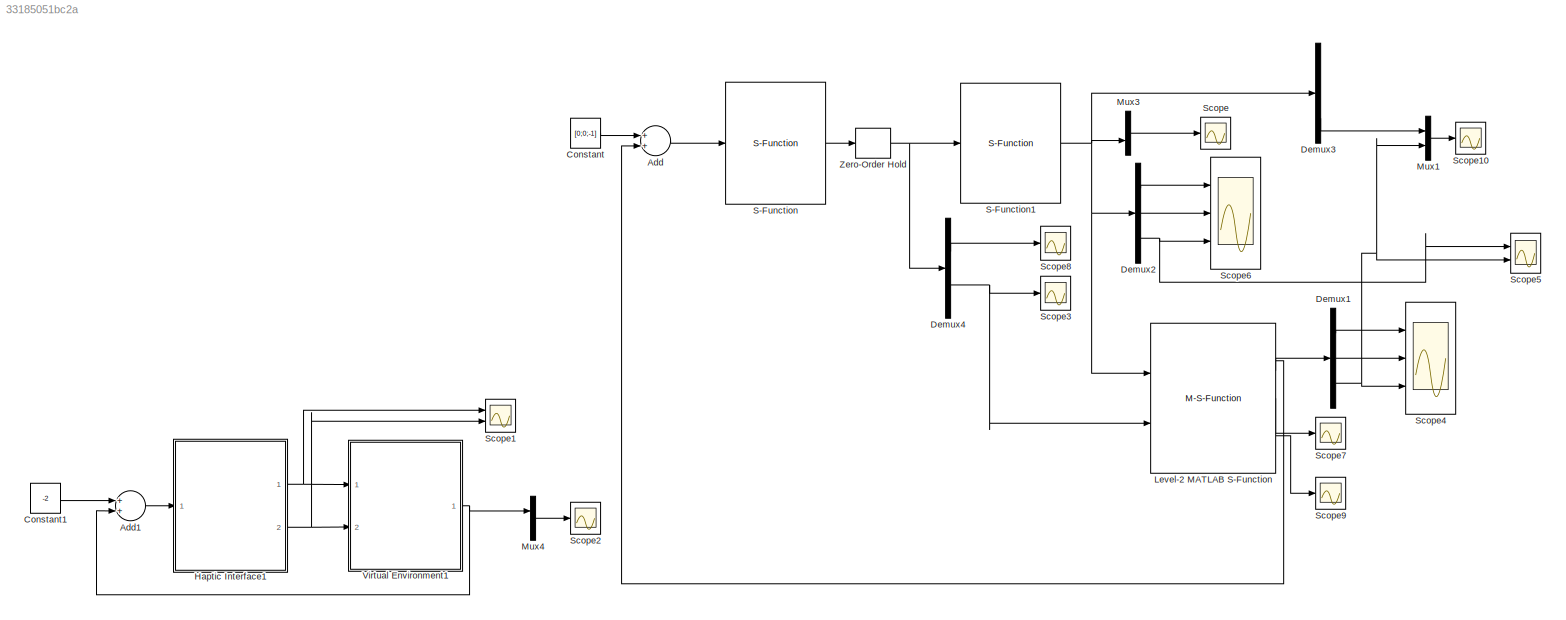
MODEL slx_33185051bc2a
KIND model
CONFIG AbsTol = auto
CONFIG FixedStep = auto
CONFIG MaxStep = auto
CONFIG MinStep = auto
CONFIG RelTol = 1e-3
CONFIG SampleTimeConstraint = Unconstrained
CONFIG Solver = VariableStepAuto
CONFIG SolverMode = Auto
CONFIG SolverName = VariableStepAuto
CONFIG StartTime = 0.0
CONFIG StopTime = 50
BLOCK [Sum] Add
  InputSameDT = off
  OutDataTypeStr = Inherit: Inherit via internal rule
  Ports = [2, 1]
  SaturateOnIntegerOverflow = off
BLOCK [Sum] Add1
  InputSameDT = off
  OutDataTypeStr = Inherit: Inherit via internal rule
  Ports = [2, 1]
  SaturateOnIntegerOverflow = off
BLOCK [Constant] Constant
  Value = [0;0;-1]
BLOCK [Constant] Constant1
  Value = -2
BLOCK [Demux] Demux1
  DisplayOption = bar
  Outputs = 3
  Ports = [1, 3]
BLOCK [Demux] Demux2
  DisplayOption = bar
  Outputs = 3
  Ports = [1, 3]
BLOCK [Demux] Demux3
  DisplayOption = bar
  Outputs = 3
  Ports = [1, 3]
BLOCK [Demux] Demux4
  DisplayOption = bar
  Outputs = 2
  Ports = [1, 2]
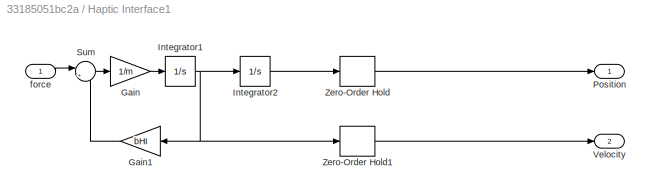
BLOCK [SubSystem] Haptic Interface1
  Ports = [1, 2]
  RequestExecContextInheritance = off
  Variant = off
BLOCK [Gain] Haptic Interface1/Gain
  Gain = 1/m
  OutDataTypeStr = Inherit: Inherit via internal rule
  ParamDataTypeStr = Inherit: Inherit via internal rule
  SaturateOnIntegerOverflow = off
BLOCK [Gain] Haptic Interface1/Gain1
  Gain = bHI
  OutDataTypeStr = Inherit: Inherit via internal rule
  ParamDataTypeStr = Inherit: Inherit via internal rule
  SaturateOnIntegerOverflow = off
BLOCK [Integrator] Haptic Interface1/Integrator1
  InitialCondition = v0(1)
  Ports = [1, 1]
BLOCK [Integrator] Haptic Interface1/Integrator2
  InitialCondition = p0(3)
  Ports = [1, 1]
BLOCK [Outport] Haptic Interface1/Position
  IconDisplay = Port number
BLOCK [Sum] Haptic Interface1/Sum
  IconShape = round
  InputSameDT = off
  Inputs = |+-
  OutDataTypeStr = Inherit: Inherit via internal rule
  Ports = [2, 1]
  SaturateOnIntegerOverflow = off
BLOCK [Outport] Haptic Interface1/Velocity
  IconDisplay = Port number
  Port = 2
BLOCK [ZeroOrderHold] Haptic Interface1/Zero-Order Hold
  SampleTime = tsampling
BLOCK [ZeroOrderHold] Haptic Interface1/Zero-Order Hold1
  SampleTime = tsampling
BLOCK [Inport] Haptic Interface1/force
  IconDisplay = Port number
BLOCK [M-S-Function] Level-2 MATLAB S-Function
  FunctionName = controller_more
  Parameters = bHI,dof,tsampling,p0
  Ports = [2, 3]
BLOCK [Mux] Mux1
  DisplayOption = bar
  Inputs = 2
  Ports = [2, 1]
BLOCK [Mux] Mux3
  DisplayOption = bar
  Inputs = 2
  Ports = [2, 1]
BLOCK [Mux] Mux4
  DisplayOption = bar
  Inputs = 2
  Ports = [2, 1]
BLOCK [S-Function] S-Function
  EnableBusSupport = off
  FunctionName = hapticdevice
  Parameters = m,bHI,v0,p0
  Ports = [1, 1]
  SFunctionDeploymentMode = off
BLOCK [S-Function] S-Function1
  EnableBusSupport = off
  FunctionName = virtualenvironment
  Parameters = kWall,bWall,xWall,[0;0;0],mu
  Ports = [1, 1]
  SFunctionDeploymentMode = off
BLOCK [Scope] Scope
  Ports = [1]
  ScopeSpecificationString = Simulink.scopes.TimeScopeBlockCfg('CurrentConfiguration', extmgr.ConfigurationSet(extmgr.Configuration('Core','General UI',true),extmgr.Configuration('Core','Source UI',true),extmgr.Configuration('Sources','WiredSimulink',true,'DataLoggingVariableName','ScopeData1'),extmgr.Configuration('Visuals','Time Domain',true,'SerializedDisplays',{struct('MinYLimReal','-504.85323','MaxYLimReal','4275.35351',...<+1533ch>
BLOCK [Scope] Scope1
  NumInputPorts = 2
  Ports = [2]
  ScopeSpecificationString = Simulink.scopes.TimeScopeBlockCfg('CurrentConfiguration', extmgr.ConfigurationSet(extmgr.Configuration('Core','General UI',true),extmgr.Configuration('Core','Source UI',true),extmgr.Configuration('Sources','WiredSimulink',true,'DataLoggingVariableName','ScopeData2'),extmgr.Configuration('Visuals','Time Domain',true,'SerializedDisplays',{struct('MinYLimReal','9.37198','MaxYLimReal','15.62534','YLab...<+2089ch>
BLOCK [Scope] Scope10
  Ports = [1]
  ScopeSpecificationString = Simulink.scopes.TimeScopeBlockCfg('CurrentConfiguration', extmgr.ConfigurationSet(extmgr.Configuration('Core','General UI',true),extmgr.Configuration('Core','Source UI',true),extmgr.Configuration('Sources','WiredSimulink',true,'DataLoggingVariableName','ScopeData5'),extmgr.Configuration('Visuals','Time Domain',true,'SerializedDisplays',{struct('MinYLimReal','-54.74028','MaxYLimReal','492.66255','Y...<+1488ch>
BLOCK [Scope] Scope2
  Ports = [1]
  ScopeSpecificationString = Simulink.scopes.TimeScopeBlockCfg('CurrentConfiguration', extmgr.ConfigurationSet(extmgr.Configuration('Core','General UI',true),extmgr.Configuration('Core','Source UI',true),extmgr.Configuration('Sources','WiredSimulink',true,'DataLoggingVariableName','ScopeData3'),extmgr.Configuration('Visuals','Time Domain',true,'SerializedDisplays',{struct('MinYLimReal','-16.91307','MaxYLimReal','152.2176','YL...<+1493ch>
BLOCK [Scope] Scope3
  Ports = [1]
  ScopeSpecificationString = Simulink.scopes.TimeScopeBlockCfg('CurrentConfiguration', extmgr.ConfigurationSet(extmgr.Configuration('Core','General UI',true),extmgr.Configuration('Core','Source UI',true),extmgr.Configuration('Sources','WiredSimulink',true,'DataLoggingVariableName','ScopeData4'),extmgr.Configuration('Visuals','Time Domain',true,'SerializedDisplays',{struct('MinYLimReal','9.99963','MaxYLimReal','9.99995','YLabe...<+1516ch>
BLOCK [Scope] Scope4
  NumInputPorts = 3
  Ports = [3]
  ScopeSpecificationString = Simulink.scopes.TimeScopeBlockCfg('CurrentConfiguration', extmgr.ConfigurationSet(extmgr.Configuration('Core','General UI',true),extmgr.Configuration('Core','Source UI',true),extmgr.Configuration('Sources','WiredSimulink',true,'DataLoggingVariableName','ScopeData1'),extmgr.Configuration('Visuals','Time Domain',true,'SerializedDisplays',{struct('MinYLimReal','-1.00000','MaxYLimReal','1.00000','YLab...<+2822ch>
BLOCK [Scope] Scope5
  NumInputPorts = 2
  Ports = [2]
  ScopeSpecificationString = Simulink.scopes.TimeScopeBlockCfg('CurrentConfiguration', extmgr.ConfigurationSet(extmgr.Configuration('Core','General UI',true),extmgr.Configuration('Core','Source UI',true),extmgr.Configuration('Sources','WiredSimulink',true,'DataLoggingVariableName','ScopeData5'),extmgr.Configuration('Visuals','Time Domain',true,'SerializedDisplays',{struct('MinYLimReal','-13.75','MaxYLimReal','123.75','YLabelR...<+2128ch>
BLOCK [Scope] Scope6
  NumInputPorts = 3
  Ports = [3]
  ScopeSpecificationString = Simulink.scopes.TimeScopeBlockCfg('CurrentConfiguration', extmgr.ConfigurationSet(extmgr.Configuration('Core','General UI',true),extmgr.Configuration('Core','Source UI',true),extmgr.Configuration('Sources','WiredSimulink',true,'DataLoggingVariableName','ScopeData2'),extmgr.Configuration('Visuals','Time Domain',true,'SerializedDisplays',{struct('MinYLimReal','-1.00000','MaxYLimReal','1.00000','YLab...<+2827ch>
BLOCK [Scope] Scope7
  Ports = [1]
  ScopeSpecificationString = Simulink.scopes.TimeScopeBlockCfg('CurrentConfiguration', extmgr.ConfigurationSet(extmgr.Configuration('Core','General UI',true),extmgr.Configuration('Core','Source UI',true),extmgr.Configuration('Sources','WiredSimulink',true,'DataLoggingVariableName','ScopeData3'),extmgr.Configuration('Visuals','Time Domain',true,'SerializedDisplays',{struct('MinYLimReal','-0.08197','MaxYLimReal','1.12022','YLab...<+1484ch>
BLOCK [Scope] Scope8
  Ports = [1]
  ScopeSpecificationString = Simulink.scopes.TimeScopeBlockCfg('CurrentConfiguration', extmgr.ConfigurationSet(extmgr.Configuration('Core','General UI',true),extmgr.Configuration('Core','Source UI',true),extmgr.Configuration('Sources','WiredSimulink',true),extmgr.Configuration('Visuals','Time Domain',true,'SerializedDisplays',{struct('MinYLimReal','-0.0559','MaxYLimReal','0.05589','YLabelReal','','MinYLimMag','0.00000','MaxYL...<+1430ch>
BLOCK [Scope] Scope9
  Ports = [1]
  ScopeSpecificationString = Simulink.scopes.TimeScopeBlockCfg('CurrentConfiguration', extmgr.ConfigurationSet(extmgr.Configuration('Core','General UI',true),extmgr.Configuration('Core','Source UI',true),extmgr.Configuration('Sources','WiredSimulink',true,'DataLoggingVariableName','ScopeData4'),extmgr.Configuration('Visuals','Time Domain',true,'SerializedDisplays',{struct('MinYLimReal','-0.4323','MaxYLimReal','3.89069','YLabe...<+1455ch>
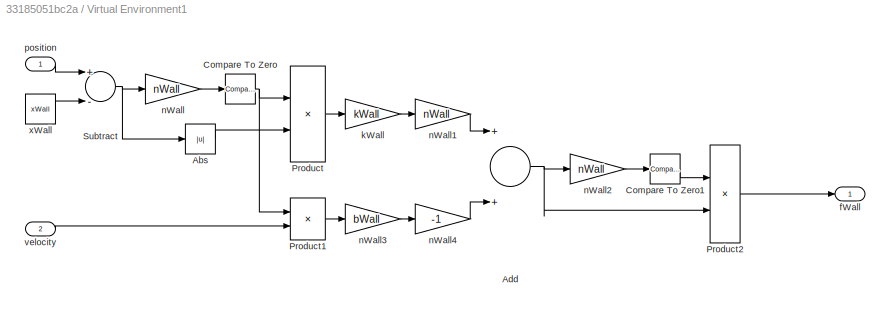
BLOCK [SubSystem] Virtual Environment1
  Ports = [2, 1]
  RequestExecContextInheritance = off
  Variant = off
BLOCK [Abs] Virtual Environment1/Abs
  SaturateOnIntegerOverflow = off
BLOCK [Sum] Virtual Environment1/Add
  InputSameDT = off
  OutDataTypeStr = Inherit: Inherit via internal rule
  Ports = [2, 1]
  SaturateOnIntegerOverflow = off
BLOCK [Reference] Virtual Environment1/Compare To Zero  REF=simulink/Logic and Bit
Operations/Compare
To Zero
  Ports = [1, 1]
  SourceBlock = simulink/Logic and Bit\nOperations/Compare\nTo Zero
  SourceType = Compare To Zero
BLOCK [Reference] Virtual Environment1/Compare To Zero1  REF=simulink/Logic and Bit
Operations/Compare
To Zero
  Ports = [1, 1]
  SourceBlock = simulink/Logic and Bit\nOperations/Compare\nTo Zero
  SourceType = Compare To Zero
BLOCK [Product] Virtual Environment1/Product
  InputSameDT = off
  OutDataTypeStr = Inherit: Inherit via internal rule
  Ports = [2, 1]
  RndMeth = Floor
  SaturateOnIntegerOverflow = off
BLOCK [Product] Virtual Environment1/Product1
  InputSameDT = off
  OutDataTypeStr = Inherit: Inherit via internal rule
  Ports = [2, 1]
  RndMeth = Floor
  SaturateOnIntegerOverflow = off
BLOCK [Product] Virtual Environment1/Product2
  InputSameDT = off
  OutDataTypeStr = Inherit: Inherit via internal rule
  Ports = [2, 1]
  RndMeth = Floor
  SaturateOnIntegerOverflow = off
BLOCK [Sum] Virtual Environment1/Subtract
  InputSameDT = off
  Inputs = +-
  OutDataTypeStr = Inherit: Inherit via internal rule
  Ports = [2, 1]
  SaturateOnIntegerOverflow = off
BLOCK [Outport] Virtual Environment1/fWall
  IconDisplay = Port number
BLOCK [Gain] Virtual Environment1/kWall
  Gain = kWall
  OutDataTypeStr = Inherit: Inherit via internal rule
  ParamDataTypeStr = Inherit: Inherit via internal rule
  SaturateOnIntegerOverflow = off
BLOCK [Gain] Virtual Environment1/nWall
  Gain = nWall
  OutDataTypeStr = Inherit: Inherit via internal rule
  ParamDataTypeStr = Inherit: Inherit via internal rule
  SaturateOnIntegerOverflow = off
BLOCK [Gain] Virtual Environment1/nWall1
  Gain = nWall
  OutDataTypeStr = Inherit: Inherit via internal rule
  ParamDataTypeStr = Inherit: Inherit via internal rule
  SaturateOnIntegerOverflow = off
BLOCK [Gain] Virtual Environment1/nWall2
  Gain = nWall
  OutDataTypeStr = Inherit: Inherit via internal rule
  ParamDataTypeStr = Inherit: Inherit via internal rule
  SaturateOnIntegerOverflow = off
BLOCK [Gain] Virtual Environment1/nWall3
  Gain = bWall
  OutDataTypeStr = Inherit: Inherit via internal rule
  ParamDataTypeStr = Inherit: Inherit via internal rule
  SaturateOnIntegerOverflow = off
BLOCK [Gain] Virtual Environment1/nWall4
  Gain = -1
  OutDataTypeStr = Inherit: Inherit via internal rule
  ParamDataTypeStr = Inherit: Inherit via internal rule
  SaturateOnIntegerOverflow = off
BLOCK [Inport] Virtual Environment1/position
  IconDisplay = Port number
BLOCK [Inport] Virtual Environment1/velocity
  IconDisplay = Port number
  Port = 2
BLOCK [Constant] Virtual Environment1/xWall
  Value = xWall
BLOCK [ZeroOrderHold] Zero-Order Hold
  SampleTime = tsampling
LINE Add1:1 -> Haptic Interface1:1
LINE Add:1 -> S-Function:1
LINE Constant1:1 -> Add1:1
LINE Constant:1 -> Add:1
LINE Demux1:1 -> Scope4:1
LINE Demux1:2 -> Scope4:2
NET Demux1:3 -> Mux1:2, Scope4:3, Scope5:2
LINE Demux2:1 -> Scope6:1
LINE Demux2:2 -> Scope6:2
NET Demux2:3 -> Scope5:1, Scope6:3
LINE Demux3:3 -> Mux1:1
LINE Demux4:1 -> Scope8:1
NET Demux4:2 -> Level-2 MATLAB S-Function:2, Scope3:1
LINE Haptic Interface1/Gain1:1 -> Haptic Interface1/Sum:2
LINE Haptic Interface1/Gain:1 -> Haptic Interface1/Integrator1:1
NET Haptic Interface1/Integrator1:1 -> Haptic Interface1/Gain1:1, Haptic Interface1/Integrator2:1, Haptic Interface1/Zero-Order Hold1:1
LINE Haptic Interface1/Integrator2:1 -> Haptic Interface1/Zero-Order Hold:1
LINE Haptic Interface1/Sum:1 -> Haptic Interface1/Gain:1
LINE Haptic Interface1/Zero-Order Hold1:1 -> Haptic Interface1/Velocity:1
LINE Haptic Interface1/Zero-Order Hold:1 -> Haptic Interface1/Position:1
LINE Haptic Interface1/force:1 -> Haptic Interface1/Sum:1
NET Haptic Interface1:1 -> Scope1:1, Virtual Environment1:1
NET Haptic Interface1:2 -> Scope1:2, Virtual Environment1:2
NET Level-2 MATLAB S-Function:1 -> Add:2, Demux1:1
LINE Level-2 MATLAB S-Function:2 -> Scope7:1
LINE Level-2 MATLAB S-Function:3 -> Scope9:1
LINE Mux1:1 -> Scope10:1
LINE Mux3:1 -> Scope:1
LINE Mux4:1 -> Scope2:1
NET S-Function1:1 -> Demux2:1, Demux3:1, Level-2 MATLAB S-Function:1, Mux3:2
LINE S-Function:1 -> Zero-Order Hold:1
LINE Virtual Environment1/Abs:1 -> Virtual Environment1/Product:2
NET Virtual Environment1/Add:1 -> Virtual Environment1/Product2:2, Virtual Environment1/nWall2:1
LINE Virtual Environment1/Compare To Zero1:1 -> Virtual Environment1/Product2:1
NET Virtual Environment1/Compare To Zero:1 -> Virtual Environment1/Product1:1, Virtual Environment1/Product:1
LINE Virtual Environment1/Product1:1 -> Virtual Environment1/nWall3:1
LINE Virtual Environment1/Product2:1 -> Virtual Environment1/fWall:1
LINE Virtual Environment1/Product:1 -> Virtual Environment1/kWall:1
NET Virtual Environment1/Subtract:1 -> Virtual Environment1/Abs:1, Virtual Environment1/nWall:1
LINE Virtual Environment1/kWall:1 -> Virtual Environment1/nWall1:1
LINE Virtual Environment1/nWall1:1 -> Virtual Environment1/Add:1
LINE Virtual Environment1/nWall2:1 -> Virtual Environment1/Compare To Zero1:1
LINE Virtual Environment1/nWall3:1 -> Virtual Environment1/nWall4:1
LINE Virtual Environment1/nWall4:1 -> Virtual Environment1/Add:2
LINE Virtual Environment1/nWall:1 -> Virtual Environment1/Compare To Zero:1
LINE Virtual Environment1/position:1 -> Virtual Environment1/Subtract:1
LINE Virtual Environment1/velocity:1 -> Virtual Environment1/Product1:2
LINE Virtual Environment1/xWall:1 -> Virtual Environment1/Subtract:2
NET Virtual Environment1:1 -> Add1:2, Mux4:1
NET Zero-Order Hold:1 -> Demux4:1, S-Function1:1
note: NET lines group one-source signal fan-out (src -> all destinations, sorted); 1:1 wires keep LINE
